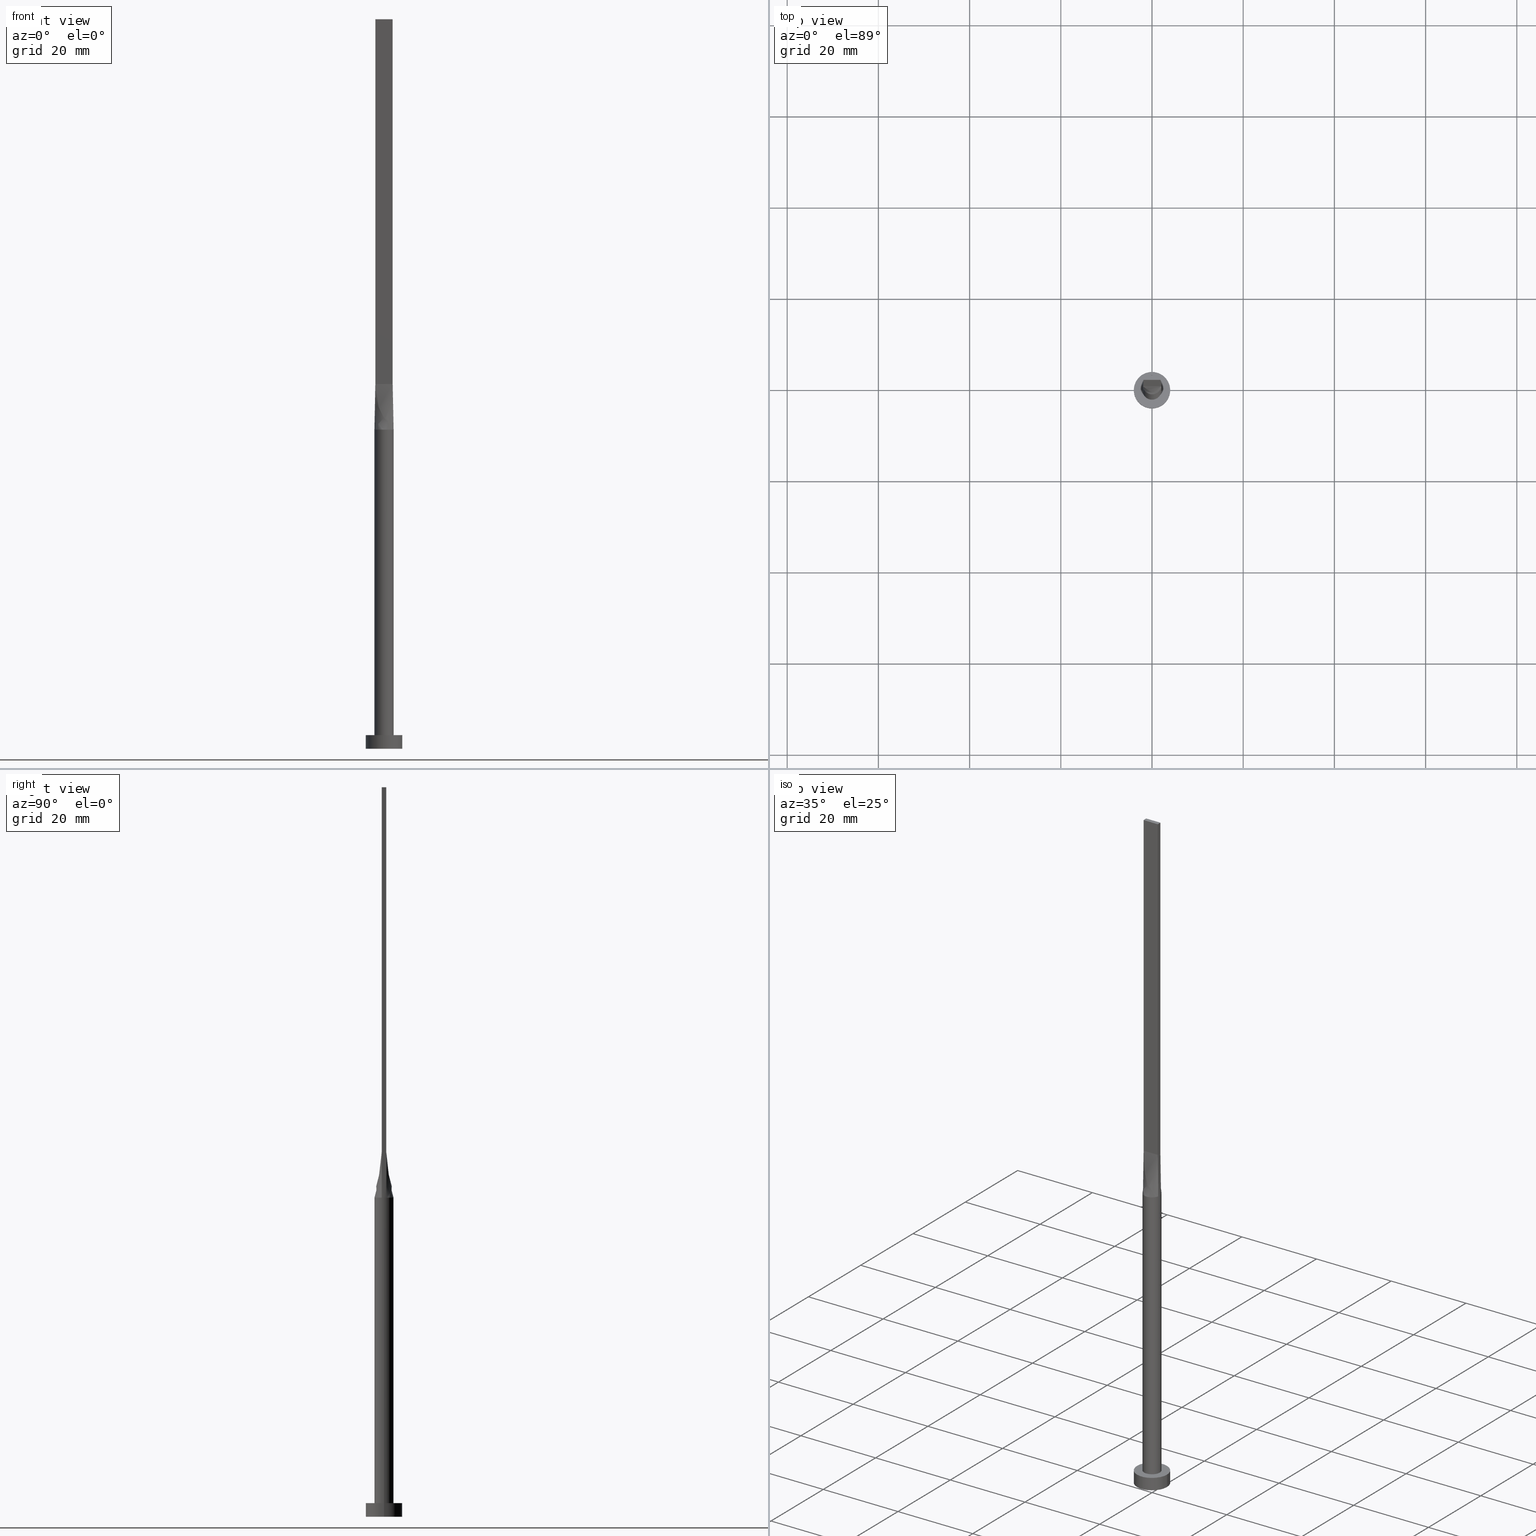
[diagram: canonical four-view strip — front | top / right | iso, engineering-drawing reading convention]
A machine part, canonical four-view strip (front | top / right | iso — engineering-drawing reading convention). The complete STEP part file that produces these views, byte-faithful:
ISO-10303-21;
HEADER;
FILE_DESCRIPTION (( 'STEP AP203' ),
    '1' );
FILE_NAME ('bfad.STEP',
    '2023-02-13T13:21:44',
    ( '' ),
    ( '' ),
    'SwSTEP 2.0',
    'SolidWorks 2019',
    '' );
FILE_SCHEMA (( 'CONFIG_CONTROL_DESIGN' ));
ENDSEC;

DATA;
#1 = CARTESIAN_POINT ( 'NONE',  ( 2.031027953490633031, -0.5344816358097418396, 70.00000000000000000 ) ) ;
#2 = CARTESIAN_POINT ( 'NONE',  ( -4.000000000000000000, 0.000000000000000000, 0.000000000000000000 ) ) ;
#3 = CARTESIAN_POINT ( 'NONE',  ( -1.899999999999999689, 0.5000000000000002220, 80.00000000000000000 ) ) ;
#4 = CARTESIAN_POINT ( 'NONE',  ( -1.899999999999999911, -0.4999999999999995559, 80.00000000000000000 ) ) ;
#5 = CARTESIAN_POINT ( 'NONE',  ( 1.583604922800829984, -1.399063468093436846, 69.99999999999998579 ) ) ;
#6 = B_SPLINE_SURFACE_WITH_KNOTS ( 'NONE', 3, 1, ( 
 ( #363, #98 ),
 ( #135, #463 ),
 ( #281, #20 ),
 ( #12, #542 ),
 ( #232, #506 ),
 ( #552, #458 ),
 ( #510, #144 ),
 ( #8, #99 ),
 ( #285, #239 ),
 ( #95, #429 ),
 ( #132, #191 ),
 ( #503, #274 ),
 ( #225, #416 ),
 ( #5, #51 ),
 ( #179, #545 ),
 ( #377, #555 ),
 ( #147, #474 ),
 ( #528, #389 ) ),
 .UNSPECIFIED., .F., .F., .F.,
 ( 4, 2, 2, 2, 2, 2, 2, 2, 4 ),
 ( 2, 2 ),
 ( 0.000000000000000000, 0.1250000000000000555, 0.2500000000000001665, 0.3750000000000002776, 0.5000000000000003331, 0.6250000000000002220, 0.7500000000000002220, 0.8750000000000001110, 1.000000000000000000 ),
 ( 0.000000000000000000, 1.000000000000000000 ),
 .UNSPECIFIED. ) ;
#7 = CARTESIAN_POINT ( 'NONE',  ( 1.987786580065029174, 0.6981017315960605929, 70.00000000000000000 ) ) ;
#8 = CARTESIAN_POINT ( 'NONE',  ( -0.5389299406762309008, -2.046272663899432409, 70.00000000000004263 ) ) ;
#9 = VERTEX_POINT ( 'NONE', #339 ) ;
#10 = DIRECTION ( 'NONE',  ( 1.000000000000000000, 0.000000000000000000, 0.000000000000000000 ) ) ;
#11 = DIRECTION ( 'NONE',  ( 2.168404344971009361E-16, 1.000000000000000000, 0.000000000000000000 ) ) ;
#12 = CARTESIAN_POINT ( 'NONE',  ( -1.719043754744862484, -1.223020672007444798, 69.99999999999998579 ) ) ;
#13 = ORIENTED_EDGE ( 'NONE', *, *, #35, .T. ) ;
#14 = CC_DESIGN_PERSON_AND_ORGANIZATION_ASSIGNMENT ( #72, #333, ( #418 ) ) ;
#15 = VECTOR ( 'NONE', #206, 1000.000000000000114 ) ;
#16 = ORIENTED_EDGE ( 'NONE', *, *, #231, .F. ) ;
#17 = CARTESIAN_POINT ( 'NONE',  ( 1.899999999999999689, 0.5000000000000002220, 160.0000000000000000 ) ) ;
#18 = AXIS2_PLACEMENT_3D ( 'NONE', #193, #557, #437 ) ;
#19 = DIRECTION ( 'NONE',  ( -0.01308445504626046078, -0.003443277643752800429, 0.9999084662483913588 ) ) ;
#20 = CARTESIAN_POINT ( 'NONE',  ( -1.583333333333332815, -0.4999999999999995559, 80.00000000000000000 ) ) ;
#21 = CYLINDRICAL_SURFACE ( 'NONE', #142, 4.000000000000000000 ) ;
#22 = ORIENTED_EDGE ( 'NONE', *, *, #104, .T. ) ;
#23 = DIRECTION ( 'NONE',  ( 0.000000000000000000, 0.000000000000000000, 1.000000000000000000 ) ) ;
#24 = ADVANCED_FACE ( 'NONE', ( #125 ), #305, .T. ) ;
#25 = CARTESIAN_POINT ( 'NONE',  ( 1.899999999999999689, 0.5000000000000002220, 80.00000000000000000 ) ) ;
#26 = CC_DESIGN_PERSON_AND_ORGANIZATION_ASSIGNMENT ( #575, #313, ( #496 ) ) ;
#27 = ORIENTED_EDGE ( 'NONE', *, *, #136, .T. ) ;
#28 = PERSON_AND_ORGANIZATION ( #522, #534 ) ;
#29 = CARTESIAN_POINT ( 'NONE',  ( -1.899999999999999689, 0.5000000000000002220, 80.00000000000000000 ) ) ;
#30 = ORIENTED_EDGE ( 'NONE', *, *, #120, .T. ) ;
#31 = VECTOR ( 'NONE', #314, 1000.000000000000000 ) ;
#32 = ORIENTED_EDGE ( 'NONE', *, *, #255, .F. ) ;
#33 = EDGE_LOOP ( 'NONE', ( #292, #116, #469, #332 ) ) ;
#34 = DIRECTION ( 'NONE',  ( -0.000000000000000000, -0.000000000000000000, -1.000000000000000000 ) ) ;
#35 = EDGE_CURVE ( 'NONE', #465, #505, #451, .T. ) ;
#36 = ORIENTED_EDGE ( 'NONE', *, *, #185, .T. ) ;
#37 = DATE_AND_TIME ( #355, #580 ) ;
#38 = PLANE ( 'NONE',  #55 ) ;
#39 = VERTEX_POINT ( 'NONE', #54 ) ;
#40 = DATE_AND_TIME ( #578, #462 ) ;
#41 = CARTESIAN_POINT ( 'NONE',  ( -2.100000000000000089, 0.000000000000000000, 3.000000000000000000 ) ) ;
#42 = CARTESIAN_POINT ( 'NONE',  ( -1.899999999999999689, 0.5000000000000002220, 160.0000000000000000 ) ) ;
#43 = ADVANCED_FACE ( 'NONE', ( #369, #323 ), #266, .T. ) ;
#44 = CARTESIAN_POINT ( 'NONE',  ( 0.000000000000000000, 0.000000000000000000, 0.000000000000000000 ) ) ;
#45 = PLANE ( 'NONE',  #308 ) ;
#46 = DIRECTION ( 'NONE',  ( -1.000000000000000000, -0.000000000000000000, -0.000000000000000000 ) ) ;
#47 = FACE_OUTER_BOUND ( 'NONE', #267, .T. ) ;
#48 = ORIENTED_EDGE ( 'NONE', *, *, #526, .F. ) ;
#49 = EDGE_LOOP ( 'NONE', ( #211, #16, #160, #226 ) ) ;
#50 = LINE ( 'NONE', #419, #517 ) ;
#51 = CARTESIAN_POINT ( 'NONE',  ( 1.108333333333334059, -0.4999999999999997780, 80.00000000000000000 ) ) ;
#52 = EDGE_LOOP ( 'NONE', ( #440, #500, #238, #504, #320, #27 ) ) ;
#53 = CARTESIAN_POINT ( 'NONE',  ( -1.920830191244604412, 0.8725264301372623876, 70.00000000000000000 ) ) ;
#54 = CARTESIAN_POINT ( 'NONE',  ( 1.899999999999999023, -0.4999999999999997780, 160.0000000000000000 ) ) ;
#55 = AXIS2_PLACEMENT_3D ( 'NONE', #404, #87, #329 ) ;
#56 = CARTESIAN_POINT ( 'NONE',  ( -1.108333333333333615, 0.5000000000000002220, 79.99999999999998579 ) ) ;
#57 = EDGE_LOOP ( 'NONE', ( #169, #192, #109, #354 ) ) ;
#58 = FACE_OUTER_BOUND ( 'NONE', #342, .T. ) ;
#59 = EDGE_CURVE ( 'NONE', #261, #505, #50, .T. ) ;
#60 = CARTESIAN_POINT ( 'NONE',  ( 1.583604922800830428, 1.399063468093436624, 70.00000000000000000 ) ) ;
#61 = DIRECTION ( 'NONE',  ( 1.000000000000000000, 0.000000000000000000, -0.000000000000000000 ) ) ;
#62 = CARTESIAN_POINT ( 'NONE',  ( 1.899999999999999023, -0.4999999999999997780, 160.0000000000000000 ) ) ;
#63 = VECTOR ( 'NONE', #388, 1000.000000000000000 ) ;
#64 = EDGE_CURVE ( 'NONE', #257, #347, #468, .T. ) ;
#65 = CIRCLE ( 'NONE', #490, 4.000000000000000000 ) ;
#66 = EDGE_LOOP ( 'NONE', ( #75, #259 ) ) ;
#67 = CARTESIAN_POINT ( 'NONE',  ( 1.899999999999999689, -0.1666666666666661856, 79.99999999999998579 ) ) ;
#68 = B_SPLINE_SURFACE_WITH_KNOTS ( 'NONE', 3, 1, ( 
 ( #441, #25 ),
 ( #301, #483 ),
 ( #164, #562 ),
 ( #567, #112 ),
 ( #171, #381 ),
 ( #218, #315 ),
 ( #411, #149 ),
 ( #146, #245 ),
 ( #330, #518 ),
 ( #513, #102 ),
 ( #284, #466 ),
 ( #181, #361 ),
 ( #280, #461 ),
 ( #277, #56 ),
 ( #224, #543 ),
 ( #53, #229 ),
 ( #423, #547 ),
 ( #415, #3 ) ),
 .UNSPECIFIED., .F., .F., .F.,
 ( 4, 2, 2, 2, 2, 2, 2, 2, 4 ),
 ( 2, 2 ),
 ( 0.000000000000000000, 0.1250000000000000278, 0.2500000000000000555, 0.3750000000000001110, 0.5000000000000000000, 0.6250000000000000000, 0.7500000000000000000, 0.8750000000000001110, 1.000000000000000000 ),
 ( 0.000000000000000000, 1.000000000000000000 ),
 .UNSPECIFIED. ) ;
#69 = ORIENTED_EDGE ( 'NONE', *, *, #70, .F. ) ;
#70 = EDGE_CURVE ( 'NONE', #143, #269, #126, .T. ) ;
#71 = MECHANICAL_CONTEXT ( 'NONE', #541, 'mechanical' ) ;
#72 = PERSON_AND_ORGANIZATION ( #522, #534 ) ;
#73 = CARTESIAN_POINT ( 'NONE',  ( 0.000000000000000000, 0.000000000000000000, 70.00000000000000000 ) ) ;
#74 = DIRECTION ( 'NONE',  ( -0.000000000000000000, -0.000000000000000000, -1.000000000000000000 ) ) ;
#75 = ORIENTED_EDGE ( 'NONE', *, *, #136, .F. ) ;
#76 = ORIENTED_EDGE ( 'NONE', *, *, #70, .T. ) ;
#77 = CARTESIAN_POINT ( 'NONE',  ( -1.899999999999999689, 0.5000000000000002220, 80.00000000000000000 ) ) ;
#78 = EDGE_CURVE ( 'NONE', #347, #261, #360, .T. ) ;
#79 = ORIENTED_EDGE ( 'NONE', *, *, #367, .T. ) ;
#80 = ADVANCED_BREP_SHAPE_REPRESENTATION ( 'bfad', ( #240, #343 ), #449 ) ;
#81 = LINE ( 'NONE', #42, #409 ) ;
#82 = APPROVAL_PERSON_ORGANIZATION ( #442, #553, #391 ) ;
#83 = EDGE_CURVE ( 'NONE', #261, #91, #172, .T. ) ;
#84 = CARTESIAN_POINT ( 'NONE',  ( 1.899999999999999023, -0.4999999999999997780, 160.0000000000000000 ) ) ;
#85 = CALENDAR_DATE ( 2023, 13, 2 ) ;
#86 = LINE ( 'NONE', #498, #397 ) ;
#87 = DIRECTION ( 'NONE',  ( 5.706327223607918787E-17, 1.000000000000000000, -0.000000000000000000 ) ) ;
#88 = PERSON_AND_ORGANIZATION ( #522, #534 ) ;
#89 = DIRECTION ( 'NONE',  ( 1.000000000000000000, 0.000000000000000000, 0.000000000000000000 ) ) ;
#90 = AXIS2_PLACEMENT_3D ( 'NONE', #287, #161, #158 ) ;
#91 = VERTEX_POINT ( 'NONE', #428 ) ;
#92 = CARTESIAN_POINT ( 'NONE',  ( -1.920830191244604412, 0.8725264301372623876, 70.00000000000000000 ) ) ;
#93 = ORIENTED_EDGE ( 'NONE', *, *, #59, .F. ) ;
#94 = DIRECTION ( 'NONE',  ( 6.505213034913026604E-16, 1.000000000000000000, 0.000000000000000000 ) ) ;
#95 = CARTESIAN_POINT ( 'NONE',  ( 0.2698109971861026857, -2.100000000000000977, 70.00000000000002842 ) ) ;
#96 = PRODUCT_RELATED_PRODUCT_CATEGORY ( 'detail', '', ( #418 ) ) ;
#97 = EDGE_CURVE ( 'NONE', #9, #425, #379, .T. ) ;
#98 = CARTESIAN_POINT ( 'NONE',  ( -1.899999999999999911, -0.4999999999999995559, 80.00000000000000000 ) ) ;
#99 = CARTESIAN_POINT ( 'NONE',  ( -0.3166666666666652641, -0.4999999999999997780, 79.99999999999998579 ) ) ;
#100 = EDGE_LOOP ( 'NONE', ( #183, #32, #448, #392 ) ) ;
#101 = DIRECTION ( 'NONE',  ( 0.000000000000000000, 0.000000000000000000, 1.000000000000000000 ) ) ;
#102 = CARTESIAN_POINT ( 'NONE',  ( -0.1583333333333339921, 0.5000000000000002220, 79.99999999999998579 ) ) ;
#103 = CARTESIAN_POINT ( 'NONE',  ( -1.021961681204346384, 1.852908961101259022, 70.00000000000001421 ) ) ;
#104 = EDGE_CURVE ( 'NONE', #307, #465, #145, .T. ) ;
#105 = AXIS2_PLACEMENT_3D ( 'NONE', #551, #101, #110 ) ;
#106 = VERTEX_POINT ( 'NONE', #393 ) ;
#107 = APPROVAL_PERSON_ORGANIZATION ( #28, #205, #264 ) ;
#108 = CARTESIAN_POINT ( 'NONE',  ( 1.899999999999999911, -0.4999999999999997780, 80.00000000000000000 ) ) ;
#109 = ORIENTED_EDGE ( 'NONE', *, *, #272, .F. ) ;
#110 = DIRECTION ( 'NONE',  ( 1.000000000000000000, 0.000000000000000000, 0.000000000000000000 ) ) ;
#111 = FACE_OUTER_BOUND ( 'NONE', #394, .T. ) ;
#112 = CARTESIAN_POINT ( 'NONE',  ( 1.266666666666665941, 0.5000000000000002220, 79.99999999999998579 ) ) ;
#113 = AXIS2_PLACEMENT_3D ( 'NONE', #511, #235, #336 ) ;
#114 = CARTESIAN_POINT ( 'NONE',  ( 2.030856528251557602, 0.5344359284872527427, 70.00000000000000000 ) ) ;
#115 = CC_DESIGN_APPROVAL ( #205, ( #128 ) ) ;
#116 = ORIENTED_EDGE ( 'NONE', *, *, #362, .F. ) ;
#117 = CC_DESIGN_PERSON_AND_ORGANIZATION_ASSIGNMENT ( #88, #410, ( #128 ) ) ;
#118 = ORIENTED_EDGE ( 'NONE', *, *, #475, .F. ) ;
#119 = APPROVAL_STATUS ( 'not_yet_approved' ) ;
#120 = EDGE_CURVE ( 'NONE', #465, #347, #157, .T. ) ;
#121 = CARTESIAN_POINT ( 'NONE',  ( 1.899999999999999689, 0.5000000000000002220, 160.0000000000000000 ) ) ;
#122 = CARTESIAN_POINT ( 'NONE',  ( 1.899999999999999689, 0.5000000000000002220, 160.0000000000000000 ) ) ;
#123 = DATE_AND_TIME ( #497, #154 ) ;
#124 = LINE ( 'NONE', #399, #31 ) ;
#125 = FACE_OUTER_BOUND ( 'NONE', #52, .T. ) ;
#126 = CIRCLE ( 'NONE', #270, 4.000000000000000000 ) ;
#127 = DIRECTION ( 'NONE',  ( 0.000000000000000000, 0.000000000000000000, 1.000000000000000000 ) ) ;
#128 = PRODUCT_DEFINITION_FORMATION_WITH_SPECIFIED_SOURCE ( 'LIBOVOLN�', '', #418, .NOT_KNOWN. ) ;
#129 = PERSON_AND_ORGANIZATION ( #522, #534 ) ;
#130 = CARTESIAN_POINT ( 'NONE',  ( -1.899999999999999911, -0.4999999999999995559, 80.00000000000000000 ) ) ;
#131 = PLANE ( 'NONE',  #374 ) ;
#132 = CARTESIAN_POINT ( 'NONE',  ( 0.5389299406762287914, -2.046272663899431965, 70.00000000000002842 ) ) ;
#133 = VECTOR ( 'NONE', #550, 1000.000000000000000 ) ;
#134 = DIRECTION ( 'NONE',  ( -0.01308445504626048160, 0.003443277643752832955, 0.9999084662483913588 ) ) ;
#135 = CARTESIAN_POINT ( 'NONE',  ( -1.987786580065029840, -0.6981017315960599268, 70.00000000000002842 ) ) ;
#136 = EDGE_CURVE ( 'NONE', #202, #201, #499, .T. ) ;
#137 = B_SPLINE_SURFACE_WITH_KNOTS ( 'NONE', 3, 1, ( 
 ( #565, #108 ),
 ( #295, #200 ),
 ( #470, #67 ),
 ( #155, #380 ),
 ( #438, #566 ),
 ( #114, #331 ) ),
 .UNSPECIFIED., .F., .F., .F.,
 ( 4, 2, 4 ),
 ( 2, 2 ),
 ( 0.000000000000000000, 0.5000000000000000000, 1.000000000000000000 ),
 ( 0.000000000000000000, 1.000000000000000000 ),
 .UNSPECIFIED. ) ;
#138 = CARTESIAN_POINT ( 'NONE',  ( 0.5389299406762297906, 2.046272663899431077, 70.00000000000000000 ) ) ;
#139 = DIRECTION ( 'NONE',  ( 0.000000000000000000, 0.000000000000000000, 1.000000000000000000 ) ) ;
#140 = AXIS2_PLACEMENT_3D ( 'NONE', #84, #529, #344 ) ;
#141 = EDGE_CURVE ( 'NONE', #505, #321, #196, .T. ) ;
#142 = AXIS2_PLACEMENT_3D ( 'NONE', #435, #74, #515 ) ;
#143 = VERTEX_POINT ( 'NONE', #564 ) ;
#144 = CARTESIAN_POINT ( 'NONE',  ( -0.6333333333333316384, -0.4999999999999996669, 79.99999999999998579 ) ) ;
#145 = LINE ( 'NONE', #556, #478 ) ;
#146 = CARTESIAN_POINT ( 'NONE',  ( 0.5389299406762297906, 2.046272663899431077, 70.00000000000000000 ) ) ;
#147 = CARTESIAN_POINT ( 'NONE',  ( 1.987786580065029396, -0.6981017315960611480, 70.00000000000001421 ) ) ;
#148 = DIRECTION ( 'NONE',  ( -2.168404344971009361E-16, -1.000000000000000000, 0.000000000000000000 ) ) ;
#149 = CARTESIAN_POINT ( 'NONE',  ( 0.6333333333333323045, 0.5000000000000002220, 79.99999999999998579 ) ) ;
#150 = LINE ( 'NONE', #328, #180 ) ;
#151 = CARTESIAN_POINT ( 'NONE',  ( 0.000000000000000000, 0.000000000000000000, 0.000000000000000000 ) ) ;
#152 = EDGE_LOOP ( 'NONE', ( #493, #445, #76, #537 ) ) ;
#153 = VECTOR ( 'NONE', #34, 1000.000000000000000 ) ;
#154 = LOCAL_TIME ( 14, 21, 44.00000000000000000, #535 ) ;
#155 = CARTESIAN_POINT ( 'NONE',  ( 2.100000000000000089, 0.1811271572287802556, 70.00000000000000000 ) ) ;
#156 = EDGE_CURVE ( 'NONE', #201, #202, #241, .T. ) ;
#157 = LINE ( 'NONE', #436, #15 ) ;
#158 = DIRECTION ( 'NONE',  ( 1.000000000000000000, 0.000000000000000000, 0.000000000000000000 ) ) ;
#159 = ADVANCED_FACE ( 'NONE', ( #253 ), #68, .T. ) ;
#160 = ORIENTED_EDGE ( 'NONE', *, *, #318, .T. ) ;
#161 = DIRECTION ( 'NONE',  ( 0.000000000000000000, 0.000000000000000000, 1.000000000000000000 ) ) ;
#162 = AXIS2_PLACEMENT_3D ( 'NONE', #383, #548, #10 ) ;
#163 = VECTOR ( 'NONE', #414, 1000.000000000000000 ) ;
#164 = CARTESIAN_POINT ( 'NONE',  ( 1.920830191244603746, 0.8725264301372623876, 69.99999999999998579 ) ) ;
#165 = ADVANCED_FACE ( 'NONE', ( #359 ), #306, .F. ) ;
#166 = ORIENTED_EDGE ( 'NONE', *, *, #523, .T. ) ;
#167 = COORDINATED_UNIVERSAL_TIME_OFFSET ( 1, 0, .AHEAD. ) ;
#168 = CARTESIAN_POINT ( 'NONE',  ( -1.899999999999999467, 0.1666666666666668795, 79.99999999999998579 ) ) ;
#169 = ORIENTED_EDGE ( 'NONE', *, *, #475, .T. ) ;
#170 = DIRECTION ( 'NONE',  ( -2.168404344971009361E-16, -1.000000000000000000, 0.000000000000000000 ) ) ;
#171 = CARTESIAN_POINT ( 'NONE',  ( 1.583604922800830428, 1.399063468093436624, 70.00000000000000000 ) ) ;
#172 = CIRCLE ( 'NONE', #405, 2.100000000000000089 ) ;
#173 = SHAPE_DEFINITION_REPRESENTATION ( #227, #80 ) ;
#174 = CARTESIAN_POINT ( 'NONE',  ( 4.000000000000000000, 4.898587196589412829E-16, 3.000000000000000000 ) ) ;
#175 = DATE_TIME_ROLE ( 'classification_date' ) ;
#176 = CARTESIAN_POINT ( 'NONE',  ( 0.000000000000000000, 0.000000000000000000, 3.000000000000000000 ) ) ;
#177 = CARTESIAN_POINT ( 'NONE',  ( -4.000000000000000000, 0.000000000000000000, 3.000000000000000000 ) ) ;
#178 = ADVANCED_FACE ( 'NONE', ( #203 ), #213, .F. ) ;
#179 = CARTESIAN_POINT ( 'NONE',  ( 1.719043754744861374, -1.223020672007445908, 70.00000000000000000 ) ) ;
#180 = VECTOR ( 'NONE', #19, 1000.000000000000114 ) ;
#181 = CARTESIAN_POINT ( 'NONE',  ( -1.021961681204346384, 1.852908961101259022, 70.00000000000001421 ) ) ;
#182 = CARTESIAN_POINT ( 'NONE',  ( -0.2698109971861040179, 2.100000000000000089, 70.00000000000001421 ) ) ;
#183 = ORIENTED_EDGE ( 'NONE', *, *, #141, .T. ) ;
#184 = CARTESIAN_POINT ( 'NONE',  ( 2.030996101999494652, 0.5344731476277209126, 70.00000000000000000 ) ) ;
#185 = EDGE_CURVE ( 'NONE', #376, #257, #217, .T. ) ;
#186 = PLANE ( 'NONE',  #439 ) ;
#187 = ORIENTED_EDGE ( 'NONE', *, *, #141, .F. ) ;
#188 = ADVANCED_FACE ( 'NONE', ( #476 ), #340, .T. ) ;
#189 = DIRECTION ( 'NONE',  ( 1.000000000000000000, 0.000000000000000000, -0.000000000000000000 ) ) ;
#190 = CIRCLE ( 'NONE', #327, 4.000000000000000000 ) ;
#191 = CARTESIAN_POINT ( 'NONE',  ( 0.3166666666666676511, -0.4999999999999997780, 79.99999999999998579 ) ) ;
#192 = ORIENTED_EDGE ( 'NONE', *, *, #526, .T. ) ;
#193 = CARTESIAN_POINT ( 'NONE',  ( 0.000000000000000000, 0.000000000000000000, 3.000000000000000000 ) ) ;
#194 = CC_DESIGN_DATE_AND_TIME_ASSIGNMENT ( #40, #175, ( #230 ) ) ;
#195 = EDGE_CURVE ( 'NONE', #199, #321, #150, .T. ) ;
#196 = LINE ( 'NONE', #396, #63 ) ;
#197 = VECTOR ( 'NONE', #248, 1000.000000000000114 ) ;
#198 = LINE ( 'NONE', #482, #570 ) ;
#199 = VERTEX_POINT ( 'NONE', #554 ) ;
#200 = CARTESIAN_POINT ( 'NONE',  ( 1.899999999999999689, -0.3333333333333329263, 79.99999999999998579 ) ) ;
#201 = VERTEX_POINT ( 'NONE', #507 ) ;
#202 = VERTEX_POINT ( 'NONE', #41 ) ;
#203 = FACE_OUTER_BOUND ( 'NONE', #33, .T. ) ;
#204 = APPROVAL_STATUS ( 'not_yet_approved' ) ;
#205 = APPROVAL ( #119, 'NEUR�EN�' ) ;
#206 = DIRECTION ( 'NONE',  ( -0.01308445504626048160, -0.003443277643752735376, -0.9999084662483913588 ) ) ;
#207 = COORDINATED_UNIVERSAL_TIME_OFFSET ( 1, 0, .AHEAD. ) ;
#208 = FACE_OUTER_BOUND ( 'NONE', #276, .T. ) ;
#209 = ORIENTED_EDGE ( 'NONE', *, *, #97, .T. ) ;
#210 = DIRECTION ( 'NONE',  ( 0.000000000000000000, 0.000000000000000000, 1.000000000000000000 ) ) ;
#211 = ORIENTED_EDGE ( 'NONE', *, *, #312, .F. ) ;
#212 = CARTESIAN_POINT ( 'NONE',  ( -1.899999999999999467, 0.3333333333333335369, 79.99999999999998579 ) ) ;
#213 = PLANE ( 'NONE',  #480 ) ;
#214 = APPROVAL_DATE_TIME ( #123, #205 ) ;
#215 = CARTESIAN_POINT ( 'NONE',  ( -2.076193315816324603, 0.3621561357411381965, 70.00000000000001421 ) ) ;
#216 = FACE_OUTER_BOUND ( 'NONE', #234, .T. ) ;
#217 = CIRCLE ( 'NONE', #113, 2.100000000000000089 ) ;
#218 = CARTESIAN_POINT ( 'NONE',  ( 1.235326090059014614, 1.714395692508636770, 70.00000000000001421 ) ) ;
#219 = CARTESIAN_POINT ( 'NONE',  ( -2.031019593402089818, 0.5344793603115657321, 70.00000000000000000 ) ) ;
#220 = APPROVAL_PERSON_ORGANIZATION ( #345, #357, #572 ) ;
#221 = CARTESIAN_POINT ( 'NONE',  ( -1.899999999999999689, 0.5000000000000002220, 160.0000000000000000 ) ) ;
#222 = CARTESIAN_POINT ( 'NONE',  ( 4.000000000000000000, 4.898587196589412829E-16, 3.000000000000000000 ) ) ;
#223 = ADVANCED_FACE ( 'NONE', ( #216 ), #45, .F. ) ;
#224 = CARTESIAN_POINT ( 'NONE',  ( -1.719043754744861596, 1.223020672007445242, 70.00000000000000000 ) ) ;
#225 = CARTESIAN_POINT ( 'NONE',  ( 1.235326090059013504, -1.714395692508636548, 69.99999999999998579 ) ) ;
#226 = ORIENTED_EDGE ( 'NONE', *, *, #249, .T. ) ;
#227 = PRODUCT_DEFINITION_SHAPE ( 'NONE', 'NONE',  #496 ) ;
#228 = CARTESIAN_POINT ( 'NONE',  ( -2.100000000000000089, 0.000000000000000000, 70.00000000000000000 ) ) ;
#229 = CARTESIAN_POINT ( 'NONE',  ( -1.583333333333333481, 0.5000000000000002220, 79.99999999999998579 ) ) ;
#230 = SECURITY_CLASSIFICATION ( '', '', #452 ) ;
#231 = EDGE_CURVE ( 'NONE', #106, #365, #335, .T. ) ;
#232 = CARTESIAN_POINT ( 'NONE',  ( -1.583604922800831760, -1.399063468093435958, 70.00000000000001421 ) ) ;
#233 = CARTESIAN_POINT ( 'NONE',  ( 1.021961681204346606, 1.852908961101259244, 70.00000000000001421 ) ) ;
#234 = EDGE_LOOP ( 'NONE', ( #22, #501, #243, #516 ) ) ;
#235 = DIRECTION ( 'NONE',  ( 0.000000000000000000, 0.000000000000000000, 1.000000000000000000 ) ) ;
#236 = CARTESIAN_POINT ( 'NONE',  ( 0.000000000000000000, 0.000000000000000000, 70.00000000000000000 ) ) ;
#237 = AXIS2_PLACEMENT_3D ( 'NONE', #258, #434, #384 ) ;
#238 = ORIENTED_EDGE ( 'NONE', *, *, #78, .F. ) ;
#239 = CARTESIAN_POINT ( 'NONE',  ( -0.1583333333333323267, -0.4999999999999997780, 80.00000000000000000 ) ) ;
#240 = MANIFOLD_SOLID_BREP ( 'P�idat vysunut�m5', #279 ) ;
#241 = CIRCLE ( 'NONE', #289, 2.100000000000000089 ) ;
#242 = AXIS2_PLACEMENT_3D ( 'NONE', #487, #531, #453 ) ;
#243 = ORIENTED_EDGE ( 'NONE', *, *, #296, .F. ) ;
#244 = ORIENTED_EDGE ( 'NONE', *, *, #195, .T. ) ;
#245 = CARTESIAN_POINT ( 'NONE',  ( 0.3166666666666656527, 0.5000000000000002220, 79.99999999999998579 ) ) ;
#246 = ORIENTED_EDGE ( 'NONE', *, *, #247, .T. ) ;
#247 = EDGE_CURVE ( 'NONE', #39, #9, #472, .T. ) ;
#248 = DIRECTION ( 'NONE',  ( 0.01308445504626046078, -0.003443277643752735376, 0.9999084662483913588 ) ) ;
#249 = EDGE_CURVE ( 'NONE', #269, #143, #190, .T. ) ;
#250 = CARTESIAN_POINT ( 'NONE',  ( 1.899999999999999023, -0.4999999999999997780, 80.00000000000000000 ) ) ;
#251 = VECTOR ( 'NONE', #375, 1000.000000000000000 ) ;
#252 = ORIENTED_EDGE ( 'NONE', *, *, #83, .T. ) ;
#253 = FACE_OUTER_BOUND ( 'NONE', #57, .T. ) ;
#254 = APPLICATION_PROTOCOL_DEFINITION ( 'international standard', 'config_control_design', 1994, #569 ) ;
#255 = EDGE_CURVE ( 'NONE', #9, #321, #311, .T. ) ;
#256 = DIRECTION ( 'NONE',  ( -0.000000000000000000, -0.000000000000000000, -1.000000000000000000 ) ) ;
#257 = VERTEX_POINT ( 'NONE', #484 ) ;
#258 = CARTESIAN_POINT ( 'NONE',  ( 0.000000000000000000, 0.000000000000000000, 3.000000000000000000 ) ) ;
#259 = ORIENTED_EDGE ( 'NONE', *, *, #156, .F. ) ;
#260 = CARTESIAN_POINT ( 'NONE',  ( -1.899999999999999689, -0.1666666666666663521, 79.99999999999998579 ) ) ;
#261 = VERTEX_POINT ( 'NONE', #1 ) ;
#262 = CARTESIAN_POINT ( 'NONE',  ( -2.031004407172260162, -0.5344754071304557153, 70.00000000000000000 ) ) ;
#263 = ADVANCED_FACE ( 'NONE', ( #208 ), #559, .T. ) ;
#264 = APPROVAL_ROLE ( '' ) ;
#265 = DIRECTION ( 'NONE',  ( -0.000000000000000000, -0.000000000000000000, -1.000000000000000000 ) ) ;
#266 = PLANE ( 'NONE',  #417 ) ;
#267 = EDGE_LOOP ( 'NONE', ( #209, #348, #524, #246 ) ) ;
#268 = CARTESIAN_POINT ( 'NONE',  ( -1.899999999999999689, 0.5000000000000002220, 80.00000000000000000 ) ) ;
#269 = VERTEX_POINT ( 'NONE', #2 ) ;
#270 = AXIS2_PLACEMENT_3D ( 'NONE', #286, #521, #512 ) ;
#271 = DATE_AND_TIME ( #310, #317 ) ;
#272 = EDGE_CURVE ( 'NONE', #321, #307, #413, .T. ) ;
#273 = CARTESIAN_POINT ( 'NONE',  ( -2.030856528251558046, -0.5344359284872516325, 70.00000000000000000 ) ) ;
#274 = CARTESIAN_POINT ( 'NONE',  ( 0.6333333333333344140, -0.4999999999999997780, 79.99999999999998579 ) ) ;
#275 = EDGE_CURVE ( 'NONE', #39, #505, #124, .T. ) ;
#276 = EDGE_LOOP ( 'NONE', ( #36, #530, #563, #520, #48 ) ) ;
#277 = CARTESIAN_POINT ( 'NONE',  ( -1.583604922800830428, 1.399063468093436402, 70.00000000000000000 ) ) ;
#278 = CARTESIAN_POINT ( 'NONE',  ( -1.899999999999999911, -0.4999999999999995559, 80.00000000000000000 ) ) ;
#279 = CLOSED_SHELL ( 'NONE', ( #288, #576, #188, #43, #304, #24, #494, #509, #263, #159, #178, #223, #403, #165, #444 ) ) ;
#280 = CARTESIAN_POINT ( 'NONE',  ( -1.235326090059014836, 1.714395692508636326, 70.00000000000001421 ) ) ;
#281 = CARTESIAN_POINT ( 'NONE',  ( -1.920830191244604412, -0.8725264301372614995, 69.99999999999998579 ) ) ;
#282 = CC_DESIGN_APPROVAL ( #357, ( #230 ) ) ;
#283 = LINE ( 'NONE', #460, #489 ) ;
#284 = CARTESIAN_POINT ( 'NONE',  ( -0.5389299406762299016, 2.046272663899431965, 70.00000000000001421 ) ) ;
#285 = CARTESIAN_POINT ( 'NONE',  ( -0.2698109971861053502, -2.100000000000000089, 70.00000000000004263 ) ) ;
#286 = CARTESIAN_POINT ( 'NONE',  ( 0.000000000000000000, 0.000000000000000000, 0.000000000000000000 ) ) ;
#287 = CARTESIAN_POINT ( 'NONE',  ( 0.000000000000000000, 0.000000000000000000, 70.00000000000000000 ) ) ;
#288 = ADVANCED_FACE ( 'NONE', ( #346 ), #356, .T. ) ;
#289 = AXIS2_PLACEMENT_3D ( 'NONE', #525, #297, #479 ) ;
#290 = DIRECTION ( 'NONE',  ( 1.000000000000000000, 0.000000000000000000, 0.000000000000000000 ) ) ;
#291 = DESIGN_CONTEXT ( 'detailed design', #569, 'design' ) ;
#292 = ORIENTED_EDGE ( 'NONE', *, *, #272, .T. ) ;
#293 = DIRECTION ( 'NONE',  ( 1.000000000000000000, 4.440892098500626951E-15, 0.000000000000000000 ) ) ;
#294 = ORIENTED_EDGE ( 'NONE', *, *, #431, .F. ) ;
#295 = CARTESIAN_POINT ( 'NONE',  ( 2.076193315816324603, -0.3621561357411388626, 70.00000000000001421 ) ) ;
#296 = EDGE_CURVE ( 'NONE', #425, #481, #81, .T. ) ;
#297 = DIRECTION ( 'NONE',  ( 0.000000000000000000, 0.000000000000000000, 1.000000000000000000 ) ) ;
#298 = FACE_OUTER_BOUND ( 'NONE', #152, .T. ) ;
#299 = CARTESIAN_POINT ( 'NONE',  ( -1.965428264125778535, 0.5172179642436262048, 75.00000000000001421 ) ) ;
#300 = ORIENTED_EDGE ( 'NONE', *, *, #59, .T. ) ;
#301 = CARTESIAN_POINT ( 'NONE',  ( 1.987786580065029174, 0.6981017315960605929, 70.00000000000000000 ) ) ;
#302 = CARTESIAN_POINT ( 'NONE',  ( -2.100000000000000977, -0.1811271572287798393, 70.00000000000000000 ) ) ;
#303 = LINE ( 'NONE', #177, #364 ) ;
#304 = ADVANCED_FACE ( 'NONE', ( #539 ), #131, .F. ) ;
#305 = CYLINDRICAL_SURFACE ( 'NONE', #527, 2.100000000000000089 ) ;
#306 = PLANE ( 'NONE',  #140 ) ;
#307 = VERTEX_POINT ( 'NONE', #268 ) ;
#308 = AXIS2_PLACEMENT_3D ( 'NONE', #221, #473, #11 ) ;
#309 = DIRECTION ( 'NONE',  ( -0.000000000000000000, -0.000000000000000000, -1.000000000000000000 ) ) ;
#310 = CALENDAR_DATE ( 2023, 13, 2 ) ;
#311 = LINE ( 'NONE', #121, #153 ) ;
#312 = EDGE_CURVE ( 'NONE', #365, #143, #533, .T. ) ;
#313 = PERSON_AND_ORGANIZATION_ROLE ( 'creator' ) ;
#314 = DIRECTION ( 'NONE',  ( -0.000000000000000000, -0.000000000000000000, -1.000000000000000000 ) ) ;
#315 = CARTESIAN_POINT ( 'NONE',  ( 0.7916666666666657415, 0.5000000000000002220, 79.99999999999998579 ) ) ;
#316 = CARTESIAN_POINT ( 'NONE',  ( -1.899999999999999689, 0.5000000000000002220, 160.0000000000000000 ) ) ;
#317 = LOCAL_TIME ( 14, 21, 44.00000000000000000, #167 ) ;
#318 = EDGE_CURVE ( 'NONE', #106, #269, #303, .T. ) ;
#319 = CARTESIAN_POINT ( 'NONE',  ( -2.031019593402089818, 0.5344793603115657321, 70.00000000000000000 ) ) ;
#320 = ORIENTED_EDGE ( 'NONE', *, *, #431, .T. ) ;
#321 = VERTEX_POINT ( 'NONE', #353 ) ;
#322 = CARTESIAN_POINT ( 'NONE',  ( -1.235326090059014836, 1.714395692508636326, 70.00000000000001421 ) ) ;
#323 = FACE_OUTER_BOUND ( 'NONE', #447, .T. ) ;
#324 = ORIENTED_EDGE ( 'NONE', *, *, #406, .T. ) ;
#325 = CARTESIAN_POINT ( 'NONE',  ( -1.899999999999999911, -0.4999999999999995559, 160.0000000000000000 ) ) ;
#326 = EDGE_LOOP ( 'NONE', ( #433, #324, #334, #294, #407, #118 ) ) ;
#327 = AXIS2_PLACEMENT_3D ( 'NONE', #44, #577, #89 ) ;
#328 = CARTESIAN_POINT ( 'NONE',  ( 1.965428264125778535, 0.5172179642436265379, 75.00000000000001421 ) ) ;
#329 = DIRECTION ( 'NONE',  ( -1.000000000000000000, 5.706327223607918787E-17, 0.000000000000000000 ) ) ;
#330 = CARTESIAN_POINT ( 'NONE',  ( 0.2698109971861041290, 2.100000000000000089, 70.00000000000000000 ) ) ;
#331 = CARTESIAN_POINT ( 'NONE',  ( 1.899999999999999689, 0.5000000000000002220, 80.00000000000000000 ) ) ;
#332 = ORIENTED_EDGE ( 'NONE', *, *, #255, .T. ) ;
#333 = PERSON_AND_ORGANIZATION_ROLE ( 'design_owner' ) ;
#334 = ORIENTED_EDGE ( 'NONE', *, *, #156, .T. ) ;
#335 = CIRCLE ( 'NONE', #502, 4.000000000000000000 ) ;
#336 = DIRECTION ( 'NONE',  ( 1.000000000000000000, 0.000000000000000000, 0.000000000000000000 ) ) ;
#337 = ORIENTED_EDGE ( 'NONE', *, *, #78, .T. ) ;
#338 =( NAMED_UNIT ( * ) SI_UNIT ( $, .STERADIAN. ) SOLID_ANGLE_UNIT ( ) );
#339 = CARTESIAN_POINT ( 'NONE',  ( 1.899999999999999689, 0.5000000000000002220, 160.0000000000000000 ) ) ;
#340 = CYLINDRICAL_SURFACE ( 'NONE', #18, 4.000000000000000000 ) ;
#341 = LINE ( 'NONE', #299, #197 ) ;
#342 = EDGE_LOOP ( 'NONE', ( #337, #300, #390, #30 ) ) ;
#343 = AXIS2_PLACEMENT_3D ( 'NONE', #151, #23, #290 ) ;
#344 = DIRECTION ( 'NONE',  ( -6.505213034913026604E-16, -1.000000000000000000, 0.000000000000000000 ) ) ;
#345 = PERSON_AND_ORGANIZATION ( #522, #534 ) ;
#346 = FACE_OUTER_BOUND ( 'NONE', #326, .T. ) ;
#347 = VERTEX_POINT ( 'NONE', #262 ) ;
#348 = ORIENTED_EDGE ( 'NONE', *, *, #296, .T. ) ;
#349 = DIRECTION ( 'NONE',  ( 1.000000000000000000, 0.000000000000000000, -0.000000000000000000 ) ) ;
#350 = VECTOR ( 'NONE', #459, 1000.000000000000000 ) ;
#351 = CC_DESIGN_APPROVAL ( #553, ( #496 ) ) ;
#352 = CARTESIAN_POINT ( 'NONE',  ( 0.000000000000000000, 0.000000000000000000, 3.000000000000000000 ) ) ;
#353 = CARTESIAN_POINT ( 'NONE',  ( 1.899999999999999689, 0.5000000000000002220, 80.00000000000000000 ) ) ;
#354 = ORIENTED_EDGE ( 'NONE', *, *, #195, .F. ) ;
#355 = CALENDAR_DATE ( 2023, 13, 2 ) ;
#356 = CYLINDRICAL_SURFACE ( 'NONE', #242, 2.100000000000000089 ) ;
#357 = APPROVAL ( #204, 'NEUR�EN�' ) ;
#358 = DIRECTION ( 'NONE',  ( 0.000000000000000000, 0.000000000000000000, 1.000000000000000000 ) ) ;
#359 = FACE_OUTER_BOUND ( 'NONE', #100, .T. ) ;
#360 = CIRCLE ( 'NONE', #105, 2.100000000000000089 ) ;
#361 = CARTESIAN_POINT ( 'NONE',  ( -0.6333333333333338588, 0.5000000000000002220, 79.99999999999998579 ) ) ;
#362 = EDGE_CURVE ( 'NONE', #425, #307, #450, .T. ) ;
#363 = CARTESIAN_POINT ( 'NONE',  ( -2.030856528251558046, -0.5344359284872515214, 70.00000000000000000 ) ) ;
#364 = VECTOR ( 'NONE', #455, 1000.000000000000000 ) ;
#365 = VERTEX_POINT ( 'NONE', #174 ) ;
#366 = CARTESIAN_POINT ( 'NONE',  ( -1.583604922800830428, 1.399063468093436402, 70.00000000000000000 ) ) ;
#367 = EDGE_CURVE ( 'NONE', #365, #106, #65, .T. ) ;
#368 = CARTESIAN_POINT ( 'NONE',  ( 0.000000000000000000, 0.000000000000000000, 3.000000000000000000 ) ) ;
#369 = FACE_BOUND ( 'NONE', #66, .T. ) ;
#370 = CARTESIAN_POINT ( 'NONE',  ( -1.987786580065029174, 0.6981017315960602598, 70.00000000000000000 ) ) ;
#371 = DIRECTION ( 'NONE',  ( 0.000000000000000000, -0.000000000000000000, -1.000000000000000000 ) ) ;
#372 = ORIENTED_EDGE ( 'NONE', *, *, #395, .T. ) ;
#373 = CARTESIAN_POINT ( 'NONE',  ( -0.5389299406762299016, 2.046272663899431965, 70.00000000000001421 ) ) ;
#374 = AXIS2_PLACEMENT_3D ( 'NONE', #457, #127, #349 ) ;
#375 = DIRECTION ( 'NONE',  ( -1.000000000000000000, 0.000000000000000000, 0.000000000000000000 ) ) ;
#376 = VERTEX_POINT ( 'NONE', #219 ) ;
#377 = CARTESIAN_POINT ( 'NONE',  ( 1.920830191244603302, -0.8725264301372632758, 70.00000000000001421 ) ) ;
#378 = B_SPLINE_CURVE_WITH_KNOTS ( 'NONE', 3,
 ( #184, #7, #514, #546, #60, #467, #233, #138, #424, #182, #373, #103, #322, #366, #508, #92, #370, #319 ),
 .UNSPECIFIED., .F., .F.,
 ( 4, 2, 2, 2, 2, 2, 2, 2, 4 ),
 ( 0.000000000000000000, 0.1250000000000000278, 0.2500000000000000555, 0.3750000000000001110, 0.5000000000000000000, 0.6250000000000000000, 0.7500000000000000000, 0.8750000000000001110, 1.000000000000000000 ),
 .UNSPECIFIED. ) ;
#379 = LINE ( 'NONE', #17, #251 ) ;
#380 = CARTESIAN_POINT ( 'NONE',  ( 1.899999999999999467, 0.1666666666666671570, 79.99999999999998579 ) ) ;
#381 = CARTESIAN_POINT ( 'NONE',  ( 1.108333333333332504, 0.5000000000000002220, 79.99999999999998579 ) ) ;
#382 = UNCERTAINTY_MEASURE_WITH_UNIT (LENGTH_MEASURE( 1.000000000000000082E-05 ), #560, 'distance_accuracy_value', 'NONE');
#383 = CARTESIAN_POINT ( 'NONE',  ( 0.000000000000000000, 0.000000000000000000, 70.00000000000000000 ) ) ;
#384 = DIRECTION ( 'NONE',  ( 1.000000000000000000, 0.000000000000000000, 0.000000000000000000 ) ) ;
#385 = APPLICATION_PROTOCOL_DEFINITION ( 'international standard', 'config_control_design', 1994, #541 ) ;
#386 = VECTOR ( 'NONE', #46, 1000.000000000000000 ) ;
#387 = DIRECTION ( 'NONE',  ( 0.000000000000000000, 0.000000000000000000, 1.000000000000000000 ) ) ;
#388 = DIRECTION ( 'NONE',  ( -2.168404344971008868E-16, 1.000000000000000000, -0.000000000000000000 ) ) ;
#389 = CARTESIAN_POINT ( 'NONE',  ( 1.899999999999999023, -0.4999999999999997780, 80.00000000000000000 ) ) ;
#390 = ORIENTED_EDGE ( 'NONE', *, *, #35, .F. ) ;
#391 = APPROVAL_ROLE ( '' ) ;
#392 = ORIENTED_EDGE ( 'NONE', *, *, #275, .T. ) ;
#393 = CARTESIAN_POINT ( 'NONE',  ( -4.000000000000000000, 0.000000000000000000, 3.000000000000000000 ) ) ;
#394 = EDGE_LOOP ( 'NONE', ( #252, #166, #244, #187, #93 ) ) ;
#395 = EDGE_CURVE ( 'NONE', #481, #465, #86, .T. ) ;
#396 = CARTESIAN_POINT ( 'NONE',  ( 1.899999999999999689, 0.5000000000000002220, 80.00000000000000000 ) ) ;
#397 = VECTOR ( 'NONE', #265, 1000.000000000000000 ) ;
#398 = PERSON_AND_ORGANIZATION_ROLE ( 'creator' ) ;
#399 = CARTESIAN_POINT ( 'NONE',  ( 1.899999999999999023, -0.4999999999999997780, 160.0000000000000000 ) ) ;
#400 = CARTESIAN_POINT ( 'NONE',  ( -1.899999999999999689, -0.3333333333333329263, 79.99999999999998579 ) ) ;
#401 = ORIENTED_EDGE ( 'NONE', *, *, #275, .F. ) ;
#402 = PERSON_AND_ORGANIZATION_ROLE ( 'classification_officer' ) ;
#403 = ADVANCED_FACE ( 'NONE', ( #495 ), #38, .F. ) ;
#404 = CARTESIAN_POINT ( 'NONE',  ( -1.899999999999999911, -0.4999999999999995559, 160.0000000000000000 ) ) ;
#405 = AXIS2_PLACEMENT_3D ( 'NONE', #236, #432, #293 ) ;
#406 = EDGE_CURVE ( 'NONE', #91, #201, #283, .T. ) ;
#407 = ORIENTED_EDGE ( 'NONE', *, *, #185, .F. ) ;
#408 = ORIENTED_EDGE ( 'NONE', *, *, #231, .T. ) ;
#409 = VECTOR ( 'NONE', #170, 1000.000000000000000 ) ;
#410 = PERSON_AND_ORGANIZATION_ROLE ( 'design_supplier' ) ;
#411 = CARTESIAN_POINT ( 'NONE',  ( 1.021961681204346606, 1.852908961101259244, 70.00000000000001421 ) ) ;
#412 = CC_DESIGN_PERSON_AND_ORGANIZATION_ASSIGNMENT ( #129, #402, ( #230 ) ) ;
#413 = LINE ( 'NONE', #29, #386 ) ;
#414 = DIRECTION ( 'NONE',  ( -0.000000000000000000, -0.000000000000000000, -1.000000000000000000 ) ) ;
#415 = CARTESIAN_POINT ( 'NONE',  ( -2.030856528251557602, 0.5344359284872521876, 70.00000000000000000 ) ) ;
#416 = CARTESIAN_POINT ( 'NONE',  ( 0.7916666666666676289, -0.4999999999999997780, 79.99999999999998579 ) ) ;
#417 = AXIS2_PLACEMENT_3D ( 'NONE', #352, #387, #189 ) ;
#418 = PRODUCT ( 'bfad', 'bfad', '', ( #71 ) ) ;
#419 = CARTESIAN_POINT ( 'NONE',  ( 1.965428264125778091, -0.5172179642436263158, 75.00000000000001421 ) ) ;
#420 = CARTESIAN_POINT ( 'NONE',  ( 0.000000000000000000, 0.000000000000000000, 160.0000000000000000 ) ) ;
#421 = LOCAL_TIME ( 14, 21, 44.00000000000000000, #491 ) ;
#422 = EDGE_LOOP ( 'NONE', ( #13, #401, #568, #372 ) ) ;
#423 = CARTESIAN_POINT ( 'NONE',  ( -1.987786580065029174, 0.6981017315960602598, 70.00000000000000000 ) ) ;
#424 = CARTESIAN_POINT ( 'NONE',  ( 0.2698109971861041290, 2.100000000000000089, 70.00000000000000000 ) ) ;
#425 = VERTEX_POINT ( 'NONE', #316 ) ;
#426 = LINE ( 'NONE', #228, #133 ) ;
#427 = ORIENTED_EDGE ( 'NONE', *, *, #249, .F. ) ;
#428 = CARTESIAN_POINT ( 'NONE',  ( 2.100000000000000089, 3.372022381799045987E-17, 70.00000000000000000 ) ) ;
#429 = CARTESIAN_POINT ( 'NONE',  ( 0.1583333333333341586, -0.4999999999999997780, 79.99999999999998579 ) ) ;
#430 = CC_DESIGN_SECURITY_CLASSIFICATION ( #230, ( #128 ) ) ;
#431 = EDGE_CURVE ( 'NONE', #257, #202, #426, .T. ) ;
#432 = DIRECTION ( 'NONE',  ( 0.000000000000000000, 0.000000000000000000, 1.000000000000000000 ) ) ;
#433 = ORIENTED_EDGE ( 'NONE', *, *, #523, .F. ) ;
#434 = DIRECTION ( 'NONE',  ( 0.000000000000000000, 0.000000000000000000, 1.000000000000000000 ) ) ;
#435 = CARTESIAN_POINT ( 'NONE',  ( 0.000000000000000000, 0.000000000000000000, 3.000000000000000000 ) ) ;
#436 = CARTESIAN_POINT ( 'NONE',  ( -1.965428264125778979, -0.5172179642436255387, 75.00000000000001421 ) ) ;
#437 = DIRECTION ( 'NONE',  ( -1.000000000000000000, 0.000000000000000000, 0.000000000000000000 ) ) ;
#438 = CARTESIAN_POINT ( 'NONE',  ( 2.076193315816325047, 0.3621561357411385851, 70.00000000000000000 ) ) ;
#439 = AXIS2_PLACEMENT_3D ( 'NONE', #420, #139, #61 ) ;
#440 = ORIENTED_EDGE ( 'NONE', *, *, #406, .F. ) ;
#441 = CARTESIAN_POINT ( 'NONE',  ( 2.030856528251557602, 0.5344359284872521876, 70.00000000000000000 ) ) ;
#442 = PERSON_AND_ORGANIZATION ( #522, #534 ) ;
#443 =( NAMED_UNIT ( * ) PLANE_ANGLE_UNIT ( ) SI_UNIT ( $, .RADIAN. ) );
#444 = ADVANCED_FACE ( 'NONE', ( #47 ), #186, .T. ) ;
#445 = ORIENTED_EDGE ( 'NONE', *, *, #312, .T. ) ;
#446 = CARTESIAN_POINT ( 'NONE',  ( -2.076193315816325491, -0.3621561357411375859, 70.00000000000000000 ) ) ;
#447 = EDGE_LOOP ( 'NONE', ( #408, #79 ) ) ;
#448 = ORIENTED_EDGE ( 'NONE', *, *, #247, .F. ) ;
#449 =( GEOMETRIC_REPRESENTATION_CONTEXT ( 3 ) GLOBAL_UNCERTAINTY_ASSIGNED_CONTEXT ( ( #382 ) ) GLOBAL_UNIT_ASSIGNED_CONTEXT ( ( #560, #443, #338 ) ) REPRESENTATION_CONTEXT ( 'NONE', 'WORKASPACE' ) );
#450 = LINE ( 'NONE', #536, #561 ) ;
#451 = LINE ( 'NONE', #4, #350 ) ;
#452 = SECURITY_CLASSIFICATION_LEVEL ( 'unclassified' ) ;
#453 = DIRECTION ( 'NONE',  ( -1.000000000000000000, 0.000000000000000000, 0.000000000000000000 ) ) ;
#454 = PERSON_AND_ORGANIZATION ( #522, #534 ) ;
#455 = DIRECTION ( 'NONE',  ( -0.000000000000000000, -0.000000000000000000, -1.000000000000000000 ) ) ;
#456 = DATE_AND_TIME ( #85, #421 ) ;
#457 = CARTESIAN_POINT ( 'NONE',  ( 0.000000000000000000, 0.000000000000000000, 0.000000000000000000 ) ) ;
#458 = CARTESIAN_POINT ( 'NONE',  ( -0.7916666666666650753, -0.4999999999999995559, 79.99999999999998579 ) ) ;
#459 = DIRECTION ( 'NONE',  ( 1.000000000000000000, -5.706327223607918787E-17, 0.000000000000000000 ) ) ;
#460 = CARTESIAN_POINT ( 'NONE',  ( 2.100000000000000089, 2.571758278209441957E-16, 70.00000000000000000 ) ) ;
#461 = CARTESIAN_POINT ( 'NONE',  ( -0.7916666666666670737, 0.5000000000000002220, 79.99999999999998579 ) ) ;
#462 = LOCAL_TIME ( 14, 21, 44.00000000000000000, #207 ) ;
#463 = CARTESIAN_POINT ( 'NONE',  ( -1.741666666666666474, -0.4999999999999995559, 80.00000000000000000 ) ) ;
#464 = DIRECTION ( 'NONE',  ( -0.000000000000000000, -0.000000000000000000, -1.000000000000000000 ) ) ;
#465 = VERTEX_POINT ( 'NONE', #278 ) ;
#466 = CARTESIAN_POINT ( 'NONE',  ( -0.3166666666666672625, 0.5000000000000002220, 79.99999999999998579 ) ) ;
#467 = CARTESIAN_POINT ( 'NONE',  ( 1.235326090059014614, 1.714395692508636770, 70.00000000000001421 ) ) ;
#468 = CIRCLE ( 'NONE', #162, 2.100000000000000089 ) ;
#469 = ORIENTED_EDGE ( 'NONE', *, *, #97, .F. ) ;
#470 = CARTESIAN_POINT ( 'NONE',  ( 2.100000000000000089, -0.1811271572287806442, 70.00000000000000000 ) ) ;
#471 = CIRCLE ( 'NONE', #90, 2.100000000000000089 ) ;
#472 = LINE ( 'NONE', #62, #544 ) ;
#473 = DIRECTION ( 'NONE',  ( 1.000000000000000000, -2.168404344971009361E-16, 0.000000000000000000 ) ) ;
#474 = CARTESIAN_POINT ( 'NONE',  ( 1.741666666666666030, -0.4999999999999997780, 80.00000000000000000 ) ) ;
#475 = EDGE_CURVE ( 'NONE', #199, #376, #378, .T. ) ;
#476 = FACE_OUTER_BOUND ( 'NONE', #49, .T. ) ;
#477 = DIRECTION ( 'NONE',  ( 1.000000000000000000, -5.706327223607920020E-17, 0.000000000000000000 ) ) ;
#478 = VECTOR ( 'NONE', #148, 1000.000000000000000 ) ;
#479 = DIRECTION ( 'NONE',  ( 1.000000000000000000, 0.000000000000000000, 0.000000000000000000 ) ) ;
#480 = AXIS2_PLACEMENT_3D ( 'NONE', #122, #485, #371 ) ;
#481 = VERTEX_POINT ( 'NONE', #325 ) ;
#482 = CARTESIAN_POINT ( 'NONE',  ( -1.899999999999999911, -0.4999999999999995559, 160.0000000000000000 ) ) ;
#483 = CARTESIAN_POINT ( 'NONE',  ( 1.741666666666666252, 0.5000000000000002220, 80.00000000000000000 ) ) ;
#484 = CARTESIAN_POINT ( 'NONE',  ( -2.100000000000000089, -1.080980291041873360E-16, 70.00000000000000000 ) ) ;
#485 = DIRECTION ( 'NONE',  ( 0.000000000000000000, -1.000000000000000000, 0.000000000000000000 ) ) ;
#486 = COORDINATED_UNIVERSAL_TIME_OFFSET ( 1, 0, .AHEAD. ) ;
#487 = CARTESIAN_POINT ( 'NONE',  ( 0.000000000000000000, 0.000000000000000000, 70.00000000000000000 ) ) ;
#488 = DIRECTION ( 'NONE',  ( -1.000000000000000000, 0.000000000000000000, 0.000000000000000000 ) ) ;
#489 = VECTOR ( 'NONE', #464, 1000.000000000000000 ) ;
#490 = AXIS2_PLACEMENT_3D ( 'NONE', #176, #358, #492 ) ;
#491 = COORDINATED_UNIVERSAL_TIME_OFFSET ( 1, 0, .AHEAD. ) ;
#492 = DIRECTION ( 'NONE',  ( 1.000000000000000000, 0.000000000000000000, 0.000000000000000000 ) ) ;
#493 = ORIENTED_EDGE ( 'NONE', *, *, #367, .F. ) ;
#494 = ADVANCED_FACE ( 'NONE', ( #58 ), #6, .T. ) ;
#495 = FACE_OUTER_BOUND ( 'NONE', #422, .T. ) ;
#496 = PRODUCT_DEFINITION ( 'NEZN�M�', '', #128, #291 ) ;
#497 = CALENDAR_DATE ( 2023, 13, 2 ) ;
#498 = CARTESIAN_POINT ( 'NONE',  ( -1.899999999999999911, -0.4999999999999995559, 160.0000000000000000 ) ) ;
#499 = CIRCLE ( 'NONE', #237, 2.100000000000000089 ) ;
#500 = ORIENTED_EDGE ( 'NONE', *, *, #83, .F. ) ;
#501 = ORIENTED_EDGE ( 'NONE', *, *, #395, .F. ) ;
#502 = AXIS2_PLACEMENT_3D ( 'NONE', #368, #210, #558 ) ;
#503 = CARTESIAN_POINT ( 'NONE',  ( 1.021961681204344830, -1.852908961101259910, 70.00000000000001421 ) ) ;
#504 = ORIENTED_EDGE ( 'NONE', *, *, #64, .F. ) ;
#505 = VERTEX_POINT ( 'NONE', #250 ) ;
#506 = CARTESIAN_POINT ( 'NONE',  ( -1.108333333333332282, -0.4999999999999995559, 79.99999999999998579 ) ) ;
#507 = CARTESIAN_POINT ( 'NONE',  ( 2.100000000000000089, 2.571758278209441957E-16, 3.000000000000000000 ) ) ;
#508 = CARTESIAN_POINT ( 'NONE',  ( -1.719043754744861596, 1.223020672007445242, 70.00000000000000000 ) ) ;
#509 = ADVANCED_FACE ( 'NONE', ( #111 ), #137, .T. ) ;
#510 = CARTESIAN_POINT ( 'NONE',  ( -1.021961681204347050, -1.852908961101258578, 70.00000000000001421 ) ) ;
#511 = CARTESIAN_POINT ( 'NONE',  ( 0.000000000000000000, 0.000000000000000000, 70.00000000000000000 ) ) ;
#512 = DIRECTION ( 'NONE',  ( 1.000000000000000000, 0.000000000000000000, 0.000000000000000000 ) ) ;
#513 = CARTESIAN_POINT ( 'NONE',  ( -0.2698109971861040179, 2.100000000000000089, 70.00000000000001421 ) ) ;
#514 = CARTESIAN_POINT ( 'NONE',  ( 1.920830191244603746, 0.8725264301372623876, 69.99999999999998579 ) ) ;
#515 = DIRECTION ( 'NONE',  ( -1.000000000000000000, 0.000000000000000000, 0.000000000000000000 ) ) ;
#516 = ORIENTED_EDGE ( 'NONE', *, *, #362, .T. ) ;
#517 = VECTOR ( 'NONE', #134, 1000.000000000000114 ) ;
#518 = CARTESIAN_POINT ( 'NONE',  ( 0.1583333333333324933, 0.5000000000000002220, 79.99999999999998579 ) ) ;
#519 = APPROVAL_STATUS ( 'not_yet_approved' ) ;
#520 = ORIENTED_EDGE ( 'NONE', *, *, #104, .F. ) ;
#521 = DIRECTION ( 'NONE',  ( 0.000000000000000000, 0.000000000000000000, 1.000000000000000000 ) ) ;
#522 = PERSON ( 'NEUR�EN�', 'NEUR�EN�', 'NEUR�EN�', ('NEUR�EN�'), ('NEUR�EN�'), ('NEUR�EN�') ) ;
#523 = EDGE_CURVE ( 'NONE', #91, #199, #471, .T. ) ;
#524 = ORIENTED_EDGE ( 'NONE', *, *, #540, .T. ) ;
#525 = CARTESIAN_POINT ( 'NONE',  ( 0.000000000000000000, 0.000000000000000000, 3.000000000000000000 ) ) ;
#526 = EDGE_CURVE ( 'NONE', #376, #307, #341, .T. ) ;
#527 = AXIS2_PLACEMENT_3D ( 'NONE', #73, #256, #488 ) ;
#528 = CARTESIAN_POINT ( 'NONE',  ( 2.030856528251557158, -0.5344359284872526317, 70.00000000000000000 ) ) ;
#529 = DIRECTION ( 'NONE',  ( -1.000000000000000000, 6.505213034913026604E-16, 0.000000000000000000 ) ) ;
#530 = ORIENTED_EDGE ( 'NONE', *, *, #64, .T. ) ;
#531 = DIRECTION ( 'NONE',  ( -0.000000000000000000, -0.000000000000000000, -1.000000000000000000 ) ) ;
#532 = DATE_TIME_ROLE ( 'creation_date' ) ;
#533 = LINE ( 'NONE', #222, #163 ) ;
#534 = ORGANIZATION ( 'NEUR�EN�', 'NEUR�EN�', '' ) ;
#535 = COORDINATED_UNIVERSAL_TIME_OFFSET ( 1, 0, .AHEAD. ) ;
#536 = CARTESIAN_POINT ( 'NONE',  ( -1.899999999999999689, 0.5000000000000002220, 160.0000000000000000 ) ) ;
#537 = ORIENTED_EDGE ( 'NONE', *, *, #318, .F. ) ;
#538 = APPROVAL_DATE_TIME ( #271, #357 ) ;
#539 = FACE_OUTER_BOUND ( 'NONE', #549, .T. ) ;
#540 = EDGE_CURVE ( 'NONE', #481, #39, #198, .T. ) ;
#541 = APPLICATION_CONTEXT ( 'configuration controlled 3d designs of mechanical parts and assemblies' ) ;
#542 = CARTESIAN_POINT ( 'NONE',  ( -1.266666666666665719, -0.4999999999999995559, 79.99999999999998579 ) ) ;
#543 = CARTESIAN_POINT ( 'NONE',  ( -1.266666666666666829, 0.5000000000000002220, 79.99999999999998579 ) ) ;
#544 = VECTOR ( 'NONE', #94, 1000.000000000000000 ) ;
#545 = CARTESIAN_POINT ( 'NONE',  ( 1.266666666666667052, -0.4999999999999997780, 80.00000000000000000 ) ) ;
#546 = CARTESIAN_POINT ( 'NONE',  ( 1.719043754744862040, 1.223020672007445464, 69.99999999999998579 ) ) ;
#547 = CARTESIAN_POINT ( 'NONE',  ( -1.741666666666666696, 0.5000000000000002220, 79.99999999999998579 ) ) ;
#548 = DIRECTION ( 'NONE',  ( 0.000000000000000000, 0.000000000000000000, 1.000000000000000000 ) ) ;
#549 = EDGE_LOOP ( 'NONE', ( #427, #69 ) ) ;
#550 = DIRECTION ( 'NONE',  ( -0.000000000000000000, -0.000000000000000000, -1.000000000000000000 ) ) ;
#551 = CARTESIAN_POINT ( 'NONE',  ( 0.000000000000000000, 0.000000000000000000, 70.00000000000000000 ) ) ;
#552 = CARTESIAN_POINT ( 'NONE',  ( -1.235326090059015725, -1.714395692508636104, 69.99999999999998579 ) ) ;
#553 = APPROVAL ( #519, 'NEUR�EN�' ) ;
#554 = CARTESIAN_POINT ( 'NONE',  ( 2.030996101999494652, 0.5344731476277209126, 70.00000000000000000 ) ) ;
#555 = CARTESIAN_POINT ( 'NONE',  ( 1.583333333333333037, -0.4999999999999997780, 80.00000000000000000 ) ) ;
#556 = CARTESIAN_POINT ( 'NONE',  ( -1.899999999999999689, 0.5000000000000002220, 80.00000000000000000 ) ) ;
#557 = DIRECTION ( 'NONE',  ( -0.000000000000000000, -0.000000000000000000, -1.000000000000000000 ) ) ;
#558 = DIRECTION ( 'NONE',  ( 1.000000000000000000, 0.000000000000000000, 0.000000000000000000 ) ) ;
#559 = B_SPLINE_SURFACE_WITH_KNOTS ( 'NONE', 3, 1, ( 
 ( #573, #77 ),
 ( #215, #212 ),
 ( #579, #168 ),
 ( #302, #260 ),
 ( #446, #400 ),
 ( #273, #130 ) ),
 .UNSPECIFIED., .F., .F., .F.,
 ( 4, 2, 4 ),
 ( 2, 2 ),
 ( 0.000000000000000000, 0.5000000000000000000, 1.000000000000000000 ),
 ( 0.000000000000000000, 1.000000000000000000 ),
 .UNSPECIFIED. ) ;
#560 =( LENGTH_UNIT ( ) NAMED_UNIT ( * ) SI_UNIT ( .MILLI., .METRE. ) );
#561 = VECTOR ( 'NONE', #309, 1000.000000000000000 ) ;
#562 = CARTESIAN_POINT ( 'NONE',  ( 1.583333333333332815, 0.5000000000000002220, 80.00000000000000000 ) ) ;
#563 = ORIENTED_EDGE ( 'NONE', *, *, #120, .F. ) ;
#564 = CARTESIAN_POINT ( 'NONE',  ( 4.000000000000000000, 4.898587196589412829E-16, 0.000000000000000000 ) ) ;
#565 = CARTESIAN_POINT ( 'NONE',  ( 2.030856528251557158, -0.5344359284872530758, 70.00000000000000000 ) ) ;
#566 = CARTESIAN_POINT ( 'NONE',  ( 1.899999999999999467, 0.3333333333333337034, 79.99999999999998579 ) ) ;
#567 = CARTESIAN_POINT ( 'NONE',  ( 1.719043754744862040, 1.223020672007445464, 69.99999999999998579 ) ) ;
#568 = ORIENTED_EDGE ( 'NONE', *, *, #540, .F. ) ;
#569 = APPLICATION_CONTEXT ( 'configuration controlled 3d designs of mechanical parts and assemblies' ) ;
#570 = VECTOR ( 'NONE', #477, 1000.000000000000000 ) ;
#571 = CC_DESIGN_DATE_AND_TIME_ASSIGNMENT ( #456, #532, ( #496 ) ) ;
#572 = APPROVAL_ROLE ( '' ) ;
#573 = CARTESIAN_POINT ( 'NONE',  ( -2.030856528251557602, 0.5344359284872521876, 70.00000000000000000 ) ) ;
#574 = CC_DESIGN_PERSON_AND_ORGANIZATION_ASSIGNMENT ( #454, #398, ( #128 ) ) ;
#575 = PERSON_AND_ORGANIZATION ( #522, #534 ) ;
#576 = ADVANCED_FACE ( 'NONE', ( #298 ), #21, .T. ) ;
#577 = DIRECTION ( 'NONE',  ( 0.000000000000000000, 0.000000000000000000, 1.000000000000000000 ) ) ;
#578 = CALENDAR_DATE ( 2023, 13, 2 ) ;
#579 = CARTESIAN_POINT ( 'NONE',  ( -2.100000000000000089, 0.1811271572287804221, 70.00000000000000000 ) ) ;
#580 = LOCAL_TIME ( 14, 21, 44.00000000000000000, #486 ) ;
#581 = APPROVAL_DATE_TIME ( #37, #553 ) ;
ENDSEC;
END-ISO-10303-21;
